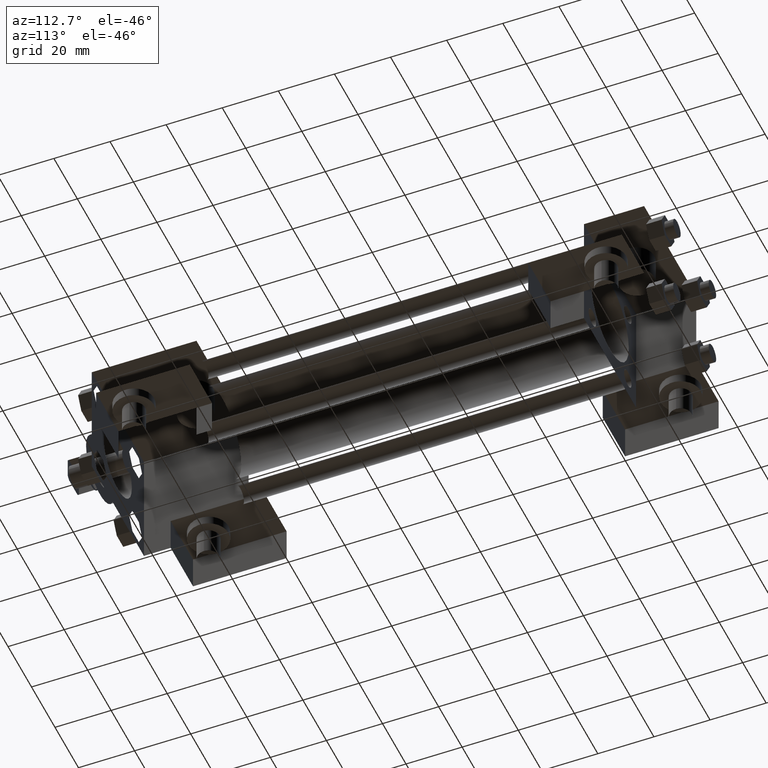
[diagram: clean part render]
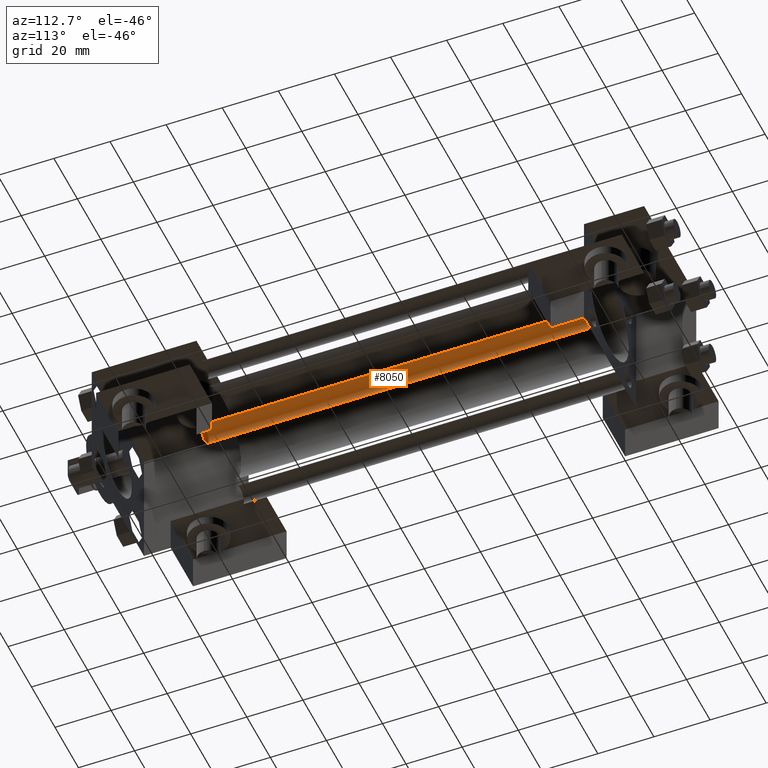
[diagram: same view with one face highlighted and labeled with its STEP entity id]
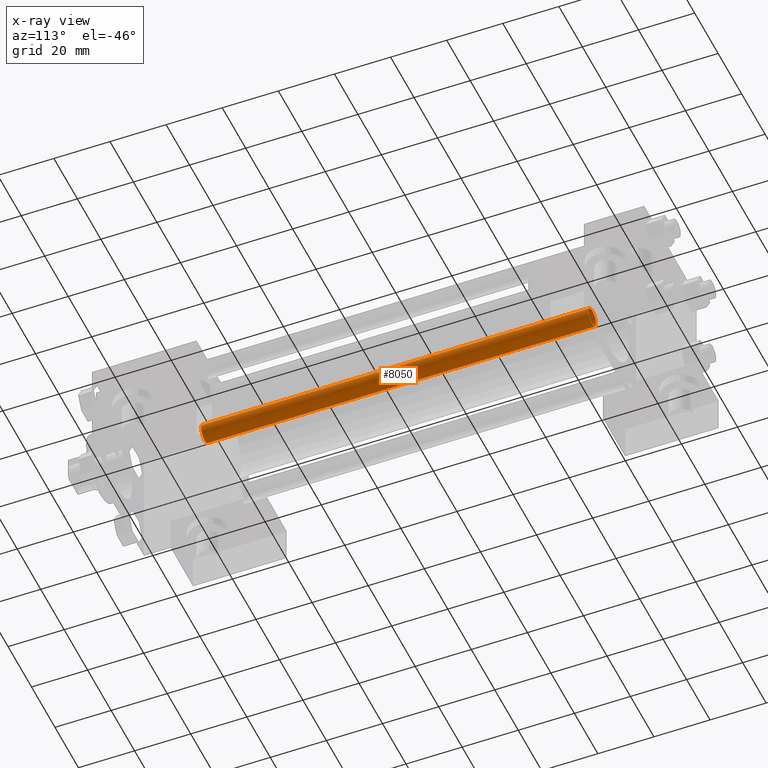
[diagram: x-ray of the same camera — body ghosted, the highlighted face saturated]
A machine part, auxiliary view. The second image highlights one B-rep face of the part: STEP entity #8050.
The next image is the same camera in x-ray: the body ghosted, the highlighted face saturated — about 0% of this face is hidden behind the body in this view.
In plain terms, the highlighted cylindrical surface (bore or boss wall) has radius 3.175 mm, axis along (0, -1, 0).
Its self-contained STEP definition (entity closure, byte-faithful):
#1188=EDGE_CURVE('',#1194,#1194,#1189,.T.);
#1189=CIRCLE('',#1190,3.175000000E+000);
#1190=AXIS2_PLACEMENT_3D('',#1191,#1192,#1193);
#1191=CARTESIAN_POINT('',(1.511300000E+001,5.318125000E+001,-1.511300000E+001));
#1192=DIRECTION('',(0.0E+000,1.0E+000,0.0E+000));
#1193=DIRECTION('',(1.0E+000,0.0E+000,0.0E+000));
#1194=VERTEX_POINT('',#1195);
#1195=CARTESIAN_POINT('',(1.828800000E+001,5.318125000E+001,-1.511300000E+001));
#2100=FACE_OUTER_BOUND('',#2102,.T.);
#2101=FACE_BOUND('',#2103,.T.);
#2102=EDGE_LOOP('',(#2104));
#2103=EDGE_LOOP('',(#2105));
#2104=ORIENTED_EDGE('',*,*,#2154,.F.);
#2105=ORIENTED_EDGE('',*,*,#1188,.T.);
#2106=CYLINDRICAL_SURFACE('',#2107,3.175000000E+000);
#2107=AXIS2_PLACEMENT_3D('',#2108,#2109,#2110);
#2108=CARTESIAN_POINT('',(1.511300000E+001,1.912937500E+002,-1.511300000E+001));
#2109=DIRECTION('',(0.0E+000,-1.0E+000,0.0E+000));
#2110=DIRECTION('',(0.0E+000,0.0E+000,-1.0E+000));
#2154=EDGE_CURVE('',#2160,#2160,#2155,.T.);
#2155=CIRCLE('',#2156,3.175000000E+000);
#2156=AXIS2_PLACEMENT_3D('',#2157,#2158,#2159);
#2157=CARTESIAN_POINT('',(1.511300000E+001,1.912937500E+002,-1.511300000E+001));
#2158=DIRECTION('',(0.0E+000,1.0E+000,0.0E+000));
#2159=DIRECTION('',(1.0E+000,0.0E+000,0.0E+000));
#2160=VERTEX_POINT('',#2161);
#2161=CARTESIAN_POINT('',(1.828800000E+001,1.912937500E+002,-1.511300000E+001));
#8050=ADVANCED_FACE('',(#2100,#2101),#2106,.T.);